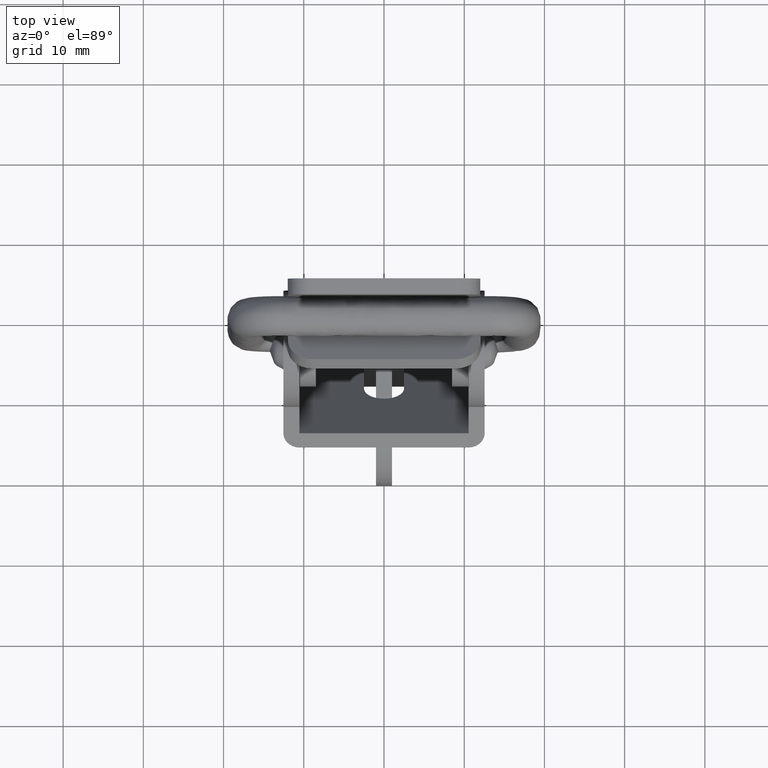
[diagram: clean part render]
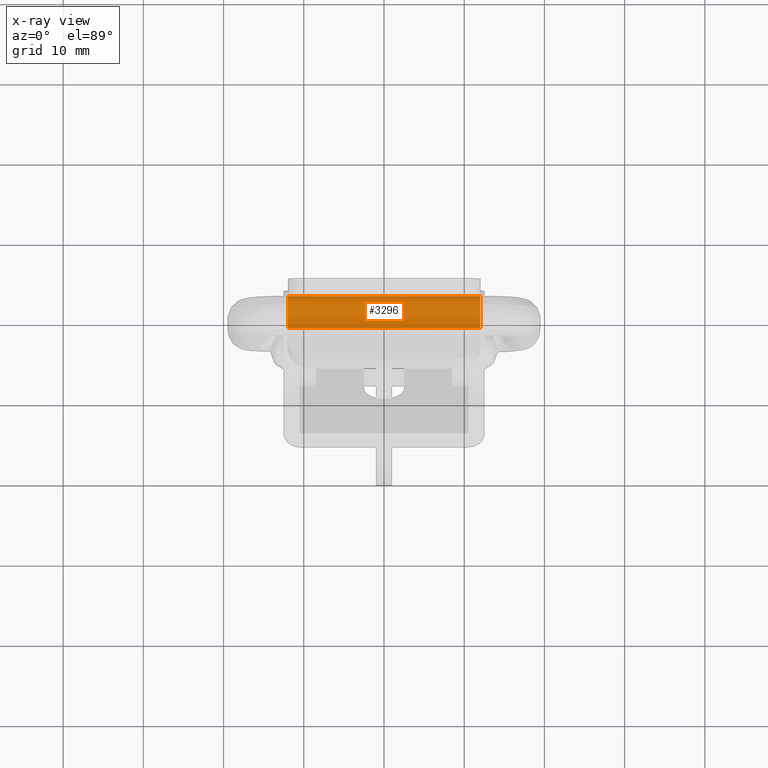
[diagram: x-ray — body ghosted, one internal face saturated and labeled with its STEP entity id]
A machine part, top view, then the same camera in x-ray: the body is ghosted and one INTERNAL B-rep face — a face not visible from any outside direction — is saturated and labeled: STEP entity #3296.
In plain terms, the highlighted face is a freeform B-spline surface patch.
Its self-contained STEP definition (entity closure, byte-faithful):
#3034=CARTESIAN_POINT('',(2.500000000000000,-12.0,-0.001265048907231));
#3035=VERTEX_POINT('',#3034);
#3041=CARTESIAN_POINT('',(-1.436427010131126,-12.0,-2.047402249723870));
#3042=VERTEX_POINT('',#3041);
#3043=CARTESIAN_POINT('',(-1.436427010131127,-12.0,-2.047402249723870));
#3044=CARTESIAN_POINT('',(-0.193950358438838,-12.0,-2.919644356086914));
#3045=CARTESIAN_POINT('',(1.153024820780580,-12.0,-2.219492666322520));
#3046=CARTESIAN_POINT('',(2.500000000000000,-12.0,-1.519340976558125));
#3047=CARTESIAN_POINT('',(2.500000000000000,-12.0,-0.001265048907231));
#3055=(BOUNDED_CURVE()B_SPLINE_CURVE(2,(#3043,#3044,#3045,#3046,#3047),.UNSPECIFIED.,.F.,.U.)B_SPLINE_CURVE_WITH_KNOTS((3,2,3),(0.0,0.500000000000000,1.0),.UNSPECIFIED.)CURVE()GEOMETRIC_REPRESENTATION_ITEM()RATIONAL_B_SPLINE_CURVE((1.0,0.854754329708903,1.0,0.854754329708903,1.0))REPRESENTATION_ITEM(''));
#3056=EDGE_CURVE('',#3042,#3035,#3055,.T.);
#3094=CARTESIAN_POINT('',(2.500000000000000,12.0,-0.001265048907231));
#3095=VERTEX_POINT('',#3094);
#3132=CARTESIAN_POINT('',(-1.436427010131126,12.0,-2.047402249723870));
#3133=VERTEX_POINT('',#3132);
#3139=CARTESIAN_POINT('',(-1.436427010131127,12.0,-2.047402249723870));
#3140=CARTESIAN_POINT('',(-0.193950358438838,12.0,-2.919644356086914));
#3141=CARTESIAN_POINT('',(1.153024820780580,12.0,-2.219492666322520));
#3142=CARTESIAN_POINT('',(2.500000000000000,12.0,-1.519340976558125));
#3143=CARTESIAN_POINT('',(2.500000000000000,12.0,-0.001265048907231));
#3151=(BOUNDED_CURVE()B_SPLINE_CURVE(2,(#3139,#3140,#3141,#3142,#3143),.UNSPECIFIED.,.F.,.U.)B_SPLINE_CURVE_WITH_KNOTS((3,2,3),(0.0,0.500000000000000,1.0),.UNSPECIFIED.)CURVE()GEOMETRIC_REPRESENTATION_ITEM()RATIONAL_B_SPLINE_CURVE((1.0,0.854754329708903,1.0,0.854754329708903,1.0))REPRESENTATION_ITEM(''));
#3152=EDGE_CURVE('',#3133,#3095,#3151,.T.);
#3264=CARTESIAN_POINT('',(-1.436427010131126,12.0,-2.047402249723870));
#3265=CARTESIAN_POINT('',(-1.436427010131126,-12.0,-2.047402249723870));
#3266=QUASI_UNIFORM_CURVE('',1,(#3264,#3265),.UNSPECIFIED.,.F.,.U.);
#3267=EDGE_CURVE('',#3133,#3042,#3266,.T.);
#3272=CARTESIAN_POINT('',(2.499143312438892,12.600000000000000,0.064177321862455));
#3273=CARTESIAN_POINT('',(2.499143312438892,-12.615000000000011,0.064177321862455));
#3274=CARTESIAN_POINT('',(2.639484929449038,12.600000000000005,-5.295252807007931));
#3275=CARTESIAN_POINT('',(2.639484929449038,-12.615000000000007,-5.295252807007931));
#3276=CARTESIAN_POINT('',(-1.556286591594046,12.600000000000000,-1.957785441038267));
#3277=CARTESIAN_POINT('',(-1.556286591594046,-12.615000000000011,-1.957785441038267));
#3285=(BOUNDED_SURFACE()B_SPLINE_SURFACE(1,2,((#3272,#3274,#3276),(#3273,#3275,#3277)),.UNSPECIFIED.,.F.,.F.,.U.)B_SPLINE_SURFACE_WITH_KNOTS((2,2),(3,3),(0.0,25.215000000000011),(0.0,6.370702608074929),.UNSPECIFIED.)GEOMETRIC_REPRESENTATION_ITEM()RATIONAL_B_SPLINE_SURFACE(((1.0,0.422618261740699,1.0),(1.0,0.422618261740699,1.0)))REPRESENTATION_ITEM('')SURFACE());
#3286=ORIENTED_EDGE('',*,*,#3056,.T.);
#3287=CARTESIAN_POINT('',(2.500000000000000,12.0,-0.001265048907231));
#3288=CARTESIAN_POINT('',(2.500000000000000,-12.0,-0.001265048907231));
#3289=QUASI_UNIFORM_CURVE('',1,(#3287,#3288),.UNSPECIFIED.,.F.,.U.);
#3290=EDGE_CURVE('',#3095,#3035,#3289,.T.);
#3291=ORIENTED_EDGE('',*,*,#3290,.F.);
#3292=ORIENTED_EDGE('',*,*,#3152,.F.);
#3293=ORIENTED_EDGE('',*,*,#3267,.T.);
#3294=EDGE_LOOP('',(#3286,#3291,#3292,#3293));
#3295=FACE_OUTER_BOUND('',#3294,.T.);
#3296=ADVANCED_FACE('',(#3295),#3285,.F.);